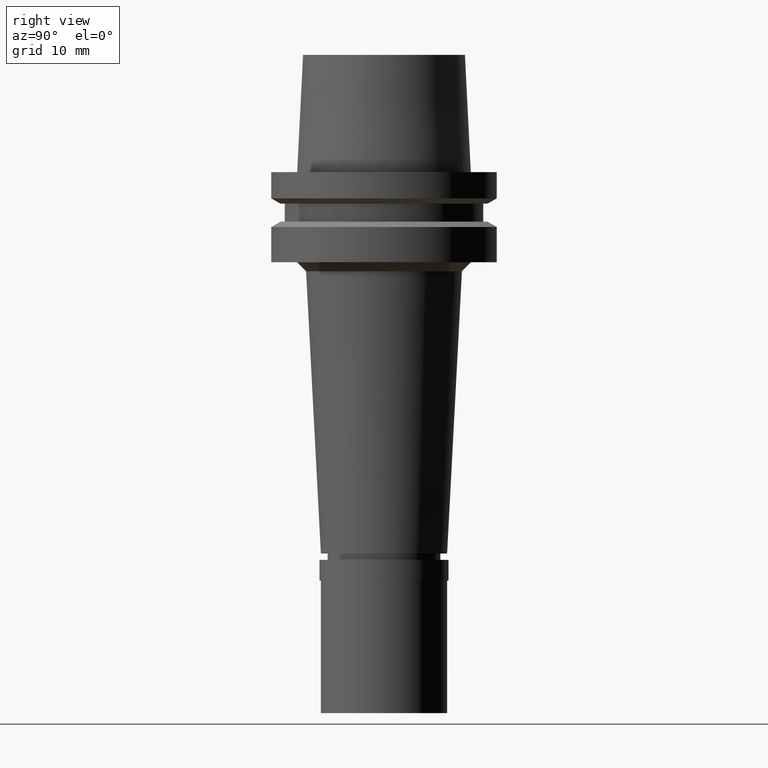
[diagram: clean part render]
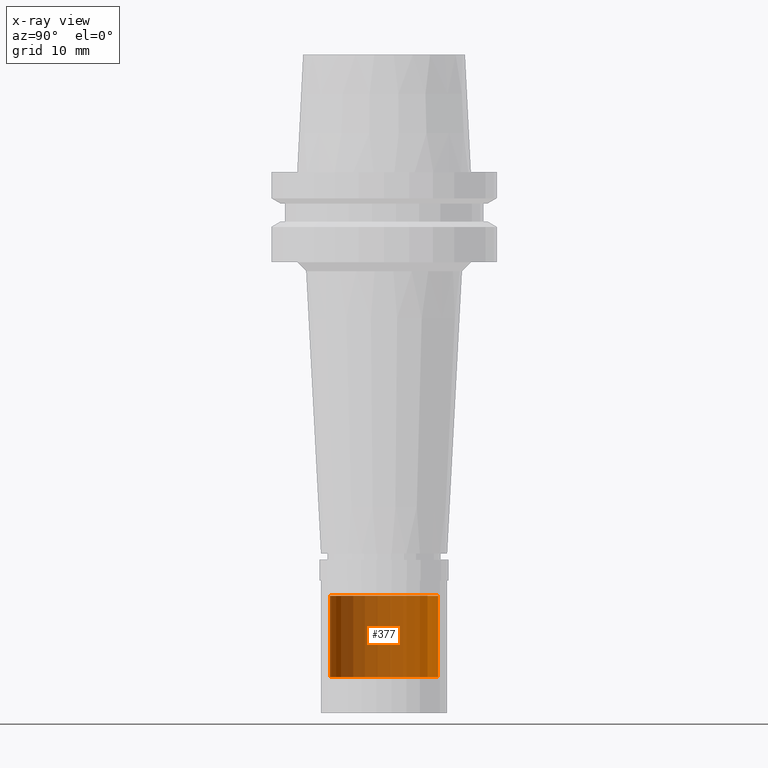
[diagram: x-ray — body ghosted, one internal face saturated and labeled with its STEP entity id]
A machine part, right view, then the same camera in x-ray: the body is ghosted and one INTERNAL B-rep face — a face not visible from any outside direction — is saturated and labeled: STEP entity #377.
In plain terms, the highlighted cylindrical surface (partial cylindrical patch) has radius 6 mm, axis along (0, 0, 1).
Its self-contained STEP definition (entity closure, byte-faithful):
#21 = DIRECTION ( 'NONE',  ( 0.0000000000000000000, 1.000000000000000000, 0.0000000000000000000 ) ) ;
#23 = VECTOR ( 'NONE', #1334, 1000.000000000000000 ) ;
#44 = CYLINDRICAL_SURFACE ( 'NONE', #319, 6.000000000000000000 ) ;
#220 = EDGE_CURVE ( 'NONE', #1942, #2609, #1582, .T. ) ;
#222 = DIRECTION ( 'NONE',  ( 0.0000000000000000000, 0.0000000000000000000, -1.000000000000000000 ) ) ;
#319 = AXIS2_PLACEMENT_3D ( 'NONE', #1484, #851, #21 ) ;
#345 = ORIENTED_EDGE ( 'NONE', *, *, #1242, .T. ) ;
#377 = ADVANCED_FACE ( 'NONE', ( #2330 ), #44, .T. ) ;
#385 = DIRECTION ( 'NONE',  ( 0.0000000000000000000, 1.000000000000000000, 0.0000000000000000000 ) ) ;
#397 = CARTESIAN_POINT ( 'NONE',  ( 0.0000000000000000000, 6.000000000000000000, -47.00000000000000000 ) ) ;
#765 = VERTEX_POINT ( 'NONE', #1614 ) ;
#809 = VERTEX_POINT ( 'NONE', #397 ) ;
#851 = DIRECTION ( 'NONE',  ( 0.0000000000000000000, 0.0000000000000000000, 1.000000000000000000 ) ) ;
#884 = CIRCLE ( 'NONE', #2377, 6.000000000000000000 ) ;
#989 = CARTESIAN_POINT ( 'NONE',  ( 0.0000000000000000000, -6.000000000000000000, -56.00000000000000000 ) ) ;
#1019 = CARTESIAN_POINT ( 'NONE',  ( 0.0000000000000000000, 0.0000000000000000000, -56.00000000000000000 ) ) ;
#1048 = EDGE_CURVE ( 'NONE', #809, #1942, #2687, .T. ) ;
#1242 = EDGE_CURVE ( 'NONE', #765, #809, #884, .T. ) ;
#1334 = DIRECTION ( 'NONE',  ( 0.0000000000000000000, 0.0000000000000000000, -1.000000000000000000 ) ) ;
#1358 = ORIENTED_EDGE ( 'NONE', *, *, #220, .T. ) ;
#1402 = EDGE_LOOP ( 'NONE', ( #1358, #2137, #345, #2447 ) ) ;
#1453 = AXIS2_PLACEMENT_3D ( 'NONE', #1019, #2674, #385 ) ;
#1484 = CARTESIAN_POINT ( 'NONE',  ( 0.0000000000000000000, 0.0000000000000000000, -59.45000000000000284 ) ) ;
#1494 = CARTESIAN_POINT ( 'NONE',  ( 0.0000000000000000000, -6.000000000000000000, -47.00000000000000000 ) ) ;
#1582 = CIRCLE ( 'NONE', #1453, 6.000000000000000000 ) ;
#1614 = CARTESIAN_POINT ( 'NONE',  ( 0.0000000000000000000, -6.000000000000000000, -47.00000000000000000 ) ) ;
#1643 = CARTESIAN_POINT ( 'NONE',  ( 0.0000000000000000000, 6.000000000000000000, -47.00000000000000000 ) ) ;
#1665 = VECTOR ( 'NONE', #222, 1000.000000000000000 ) ;
#1942 = VERTEX_POINT ( 'NONE', #2432 ) ;
#1991 = DIRECTION ( 'NONE',  ( 0.0000000000000000000, -1.000000000000000000, 0.0000000000000000000 ) ) ;
#2137 = ORIENTED_EDGE ( 'NONE', *, *, #2397, .F. ) ;
#2153 = LINE ( 'NONE', #1494, #23 ) ;
#2167 = DIRECTION ( 'NONE',  ( 0.0000000000000000000, 0.0000000000000000000, -1.000000000000000000 ) ) ;
#2330 = FACE_OUTER_BOUND ( 'NONE', #1402, .T. ) ;
#2370 = CARTESIAN_POINT ( 'NONE',  ( 0.0000000000000000000, 0.0000000000000000000, -47.00000000000000000 ) ) ;
#2377 = AXIS2_PLACEMENT_3D ( 'NONE', #2370, #2167, #1991 ) ;
#2397 = EDGE_CURVE ( 'NONE', #765, #2609, #2153, .T. ) ;
#2432 = CARTESIAN_POINT ( 'NONE',  ( 0.0000000000000000000, 6.000000000000000000, -56.00000000000000000 ) ) ;
#2447 = ORIENTED_EDGE ( 'NONE', *, *, #1048, .T. ) ;
#2609 = VERTEX_POINT ( 'NONE', #989 ) ;
#2674 = DIRECTION ( 'NONE',  ( 0.0000000000000000000, 0.0000000000000000000, 1.000000000000000000 ) ) ;
#2687 = LINE ( 'NONE', #1643, #1665 ) ;